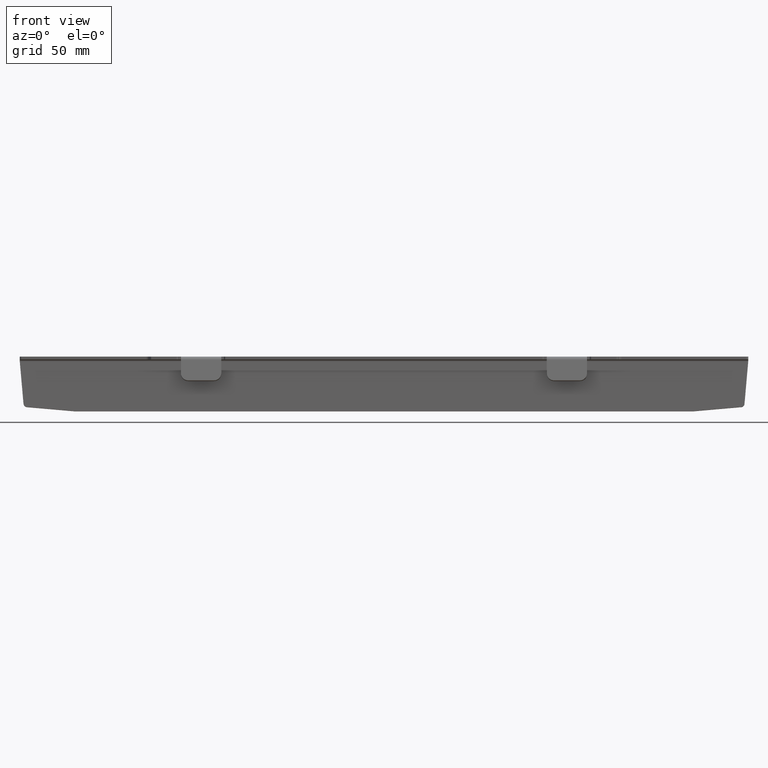
[diagram: clean part render]
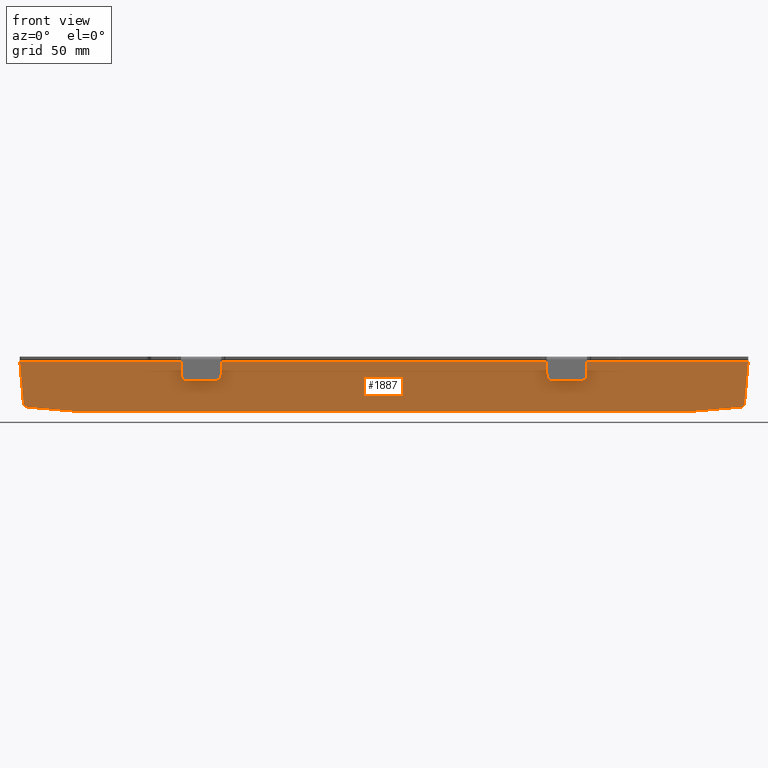
[diagram: same view with one face highlighted and labeled with its STEP entity id]
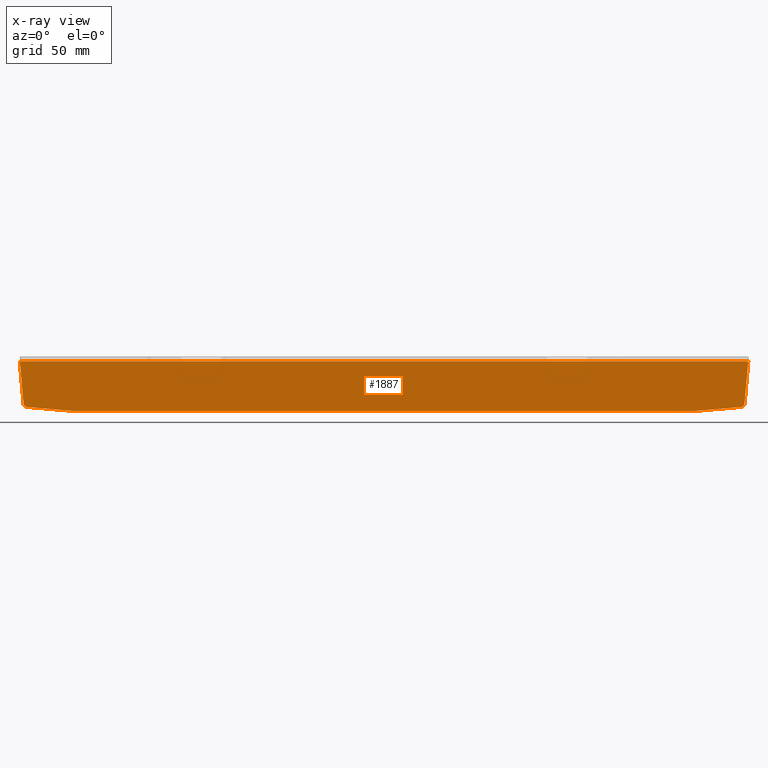
[diagram: x-ray of the same camera — body ghosted, the highlighted face saturated]
A machine part, front view. The second image highlights one B-rep face of the part: STEP entity #1887.
The next image is the same camera in x-ray: the body ghosted, the highlighted face saturated — about 0% of this face is hidden behind the body in this view.
In plain terms, the highlighted planar face has unit normal (0, -0.9962, 0.0872).
Its self-contained STEP definition (entity closure, byte-faithful):
#5 = VECTOR ( 'NONE', #786, 1000.000000000000000 ) ;
#64 = CIRCLE ( 'NONE', #206, 2.000000000000001300 ) ;
#78 = DIRECTION ( 'NONE',  ( -0.9961946980917455500, -0.007596123493895701900, -0.08682408883346544300 ) ) ;
#92 = DIRECTION ( 'NONE',  ( 0.0000000000000000000, -0.9961946980917458800, 0.08715574274765486300 ) ) ;
#95 = VERTEX_POINT ( 'NONE', #1687 ) ;
#101 = CARTESIAN_POINT ( 'NONE',  ( -3.792481612635670200, 8.927551874112502600, -44.19942897262853900 ) ) ;
#118 = LINE ( 'NONE', #101, #1873 ) ;
#148 = AXIS2_PLACEMENT_3D ( 'NONE', #1950, #661, #850 ) ;
#150 = VECTOR ( 'NONE', #2233, 1000.000000000000000 ) ;
#158 = FACE_OUTER_BOUND ( 'NONE', #607, .T. ) ;
#185 = CIRCLE ( 'NONE', #2354, 2.000000000000001300 ) ;
#200 = CARTESIAN_POINT ( 'NONE',  ( -199.0999999999999900, 12.56815404527022800, -2.587155742747654100 ) ) ;
#206 = AXIS2_PLACEMENT_3D ( 'NONE', #1548, #2296, #417 ) ;
#247 = VECTOR ( 'NONE', #2066, 1000.000000000000200 ) ;
#268 = VERTEX_POINT ( 'NONE', #757 ) ;
#331 = DIRECTION ( 'NONE',  ( 0.0000000000000000000, -0.9961946980917457700, 0.08715574274765484900 ) ) ;
#335 = VERTEX_POINT ( 'NONE', #2063 ) ;
#406 = VERTEX_POINT ( 'NONE', #2294 ) ;
#417 = DIRECTION ( 'NONE',  ( 0.0000000000000000000, -0.08715574274765521000, -0.9961946980917457700 ) ) ;
#439 = VERTEX_POINT ( 'NONE', #977 ) ;
#466 = ORIENTED_EDGE ( 'NONE', *, *, #2319, .T. ) ;
#539 = ORIENTED_EDGE ( 'NONE', *, *, #1154, .F. ) ;
#574 = EDGE_CURVE ( 'NONE', #268, #1419, #185, .T. ) ;
#594 = AXIS2_PLACEMENT_3D ( 'NONE', #664, #92, #1761 ) ;
#607 = EDGE_LOOP ( 'NONE', ( #1549, #1827, #2376, #1309, #1567, #2118, #539, #466, #841, #734 ) ) ;
#628 = CIRCLE ( 'NONE', #1353, 2.000000000000001300 ) ;
#661 = DIRECTION ( 'NONE',  ( 0.0000000000000000000, -0.9961946980917457700, 0.08715574274765484900 ) ) ;
#664 = CARTESIAN_POINT ( 'NONE',  ( 0.0000000000000000000, 12.70560194923043800, -1.016119011577477400 ) ) ;
#698 = CARTESIAN_POINT ( 'NONE',  ( -169.0126781141831900, 10.36235623970966200, -27.79954002962209000 ) ) ;
#707 = DIRECTION ( 'NONE',  ( 0.0000000000000000000, -0.08715574274765521000, -0.9961946980917457700 ) ) ;
#733 = LINE ( 'NONE', #744, #247 ) ;
#734 = ORIENTED_EDGE ( 'NONE', *, *, #2209, .F. ) ;
#744 = CARTESIAN_POINT ( 'NONE',  ( 197.7245366855542800, 11.19792478399977400, -18.24894786584358300 ) ) ;
#757 = CARTESIAN_POINT ( 'NONE',  ( -169.1869895996785500, 10.18870806204273900, -29.78434778263429200 ) ) ;
#786 = DIRECTION ( 'NONE',  ( 1.000000000000000000, 0.0000000000000000000, 0.0000000000000000000 ) ) ;
#841 = ORIENTED_EDGE ( 'NONE', *, *, #1311, .F. ) ;
#850 = DIRECTION ( 'NONE',  ( 0.0000000000000000000, -0.08715574274765521000, -0.9961946980917457700 ) ) ;
#874 = VERTEX_POINT ( 'NONE', #2244 ) ;
#875 = EDGE_CURVE ( 'NONE', #1347, #1419, #1737, .T. ) ;
#926 = CARTESIAN_POINT ( 'NONE',  ( 169.0126781141830700, 10.18804475421435100, -29.79192942580558400 ) ) ;
#977 = CARTESIAN_POINT ( 'NONE',  ( -197.0700343219225200, 10.54591299946135200, -25.70147666513480500 ) ) ;
#1019 = CARTESIAN_POINT ( 'NONE',  ( 197.0700343219225500, 10.54591299946135400, -25.70147666513478800 ) ) ;
#1061 = CIRCLE ( 'NONE', #148, 2.000000000000001300 ) ;
#1070 = DIRECTION ( 'NONE',  ( 0.0000000000000000000, -0.9961946980917457700, 0.08715574274765484900 ) ) ;
#1119 = LINE ( 'NONE', #200, #5 ) ;
#1147 = VERTEX_POINT ( 'NONE', #1019 ) ;
#1149 = VECTOR ( 'NONE', #1751, 1000.000000000000100 ) ;
#1154 = EDGE_CURVE ( 'NONE', #95, #335, #1434, .T. ) ;
#1190 = CARTESIAN_POINT ( 'NONE',  ( -197.7245366855542600, 11.19792478399977400, -18.24894786584358300 ) ) ;
#1201 = EDGE_CURVE ( 'NONE', #1894, #268, #118, .T. ) ;
#1309 = ORIENTED_EDGE ( 'NONE', *, *, #574, .T. ) ;
#1311 = EDGE_CURVE ( 'NONE', #406, #1147, #733, .T. ) ;
#1347 = VERTEX_POINT ( 'NONE', #926 ) ;
#1353 = AXIS2_PLACEMENT_3D ( 'NONE', #2323, #331, #1796 ) ;
#1389 = CARTESIAN_POINT ( 'NONE',  ( 3.792481612635670200, 8.927551874112506200, -44.19942897262853200 ) ) ;
#1418 = CARTESIAN_POINT ( 'NONE',  ( -195.2519564112343700, 10.38745706878221900, -27.51263624048007700 ) ) ;
#1419 = VERTEX_POINT ( 'NONE', #1685 ) ;
#1434 = LINE ( 'NONE', #1389, #2228 ) ;
#1548 = CARTESIAN_POINT ( 'NONE',  ( -195.0776449257390400, 10.56110524644914200, -25.52782848746787500 ) ) ;
#1549 = ORIENTED_EDGE ( 'NONE', *, *, #1660, .T. ) ;
#1567 = ORIENTED_EDGE ( 'NONE', *, *, #875, .F. ) ;
#1587 = DIRECTION ( 'NONE',  ( 0.9961946980917455500, -0.007596123493895701000, -0.08682408883346542900 ) ) ;
#1660 = EDGE_CURVE ( 'NONE', #874, #439, #2195, .T. ) ;
#1685 = CARTESIAN_POINT ( 'NONE',  ( -169.0126781141831900, 10.18804475421435100, -29.79192942580558400 ) ) ;
#1687 = CARTESIAN_POINT ( 'NONE',  ( 195.2519564112344000, 10.38745706878222200, -27.51263624048006700 ) ) ;
#1703 = EDGE_CURVE ( 'NONE', #439, #1894, #64, .T. ) ;
#1737 = LINE ( 'NONE', #2037, #150 ) ;
#1751 = DIRECTION ( 'NONE',  ( 0.08715574274765833200, -0.08682408883346184900, -0.9924038765061041800 ) ) ;
#1761 = DIRECTION ( 'NONE',  ( 0.0000000000000000000, -0.08715574274765486300, -0.9961946980917458800 ) ) ;
#1781 = PLANE ( 'NONE',  #594 ) ;
#1796 = DIRECTION ( 'NONE',  ( 0.0000000000000000000, -0.08715574274765521000, -0.9961946980917457700 ) ) ;
#1827 = ORIENTED_EDGE ( 'NONE', *, *, #1703, .T. ) ;
#1845 = EDGE_CURVE ( 'NONE', #1347, #335, #1061, .T. ) ;
#1873 = VECTOR ( 'NONE', #1587, 1000.000000000000100 ) ;
#1887 = ADVANCED_FACE ( 'NONE', ( #158 ), #1781, .T. ) ;
#1894 = VERTEX_POINT ( 'NONE', #1418 ) ;
#1950 = CARTESIAN_POINT ( 'NONE',  ( 169.0126781141830700, 10.36235623970966200, -27.79954002962209000 ) ) ;
#2037 = CARTESIAN_POINT ( 'NONE',  ( -199.0999999999999900, 10.18804475421435100, -29.79192942580558400 ) ) ;
#2063 = CARTESIAN_POINT ( 'NONE',  ( 169.1869895996784400, 10.18870806204274100, -29.78434778263429200 ) ) ;
#2066 = DIRECTION ( 'NONE',  ( -0.08715574274765831900, -0.08682408883346184900, -0.9924038765061041800 ) ) ;
#2118 = ORIENTED_EDGE ( 'NONE', *, *, #1845, .T. ) ;
#2195 = LINE ( 'NONE', #1190, #1149 ) ;
#2209 = EDGE_CURVE ( 'NONE', #874, #406, #1119, .T. ) ;
#2228 = VECTOR ( 'NONE', #78, 1000.000000000000000 ) ;
#2233 = DIRECTION ( 'NONE',  ( -1.000000000000000000, -0.0000000000000000000, -0.0000000000000000000 ) ) ;
#2244 = CARTESIAN_POINT ( 'NONE',  ( -199.0999999999999900, 12.56815404527022800, -2.587155742747654100 ) ) ;
#2294 = CARTESIAN_POINT ( 'NONE',  ( 199.1000000000001100, 12.56815404527023000, -2.587155742747648800 ) ) ;
#2296 = DIRECTION ( 'NONE',  ( 0.0000000000000000000, -0.9961946980917457700, 0.08715574274765484900 ) ) ;
#2319 = EDGE_CURVE ( 'NONE', #95, #1147, #628, .T. ) ;
#2323 = CARTESIAN_POINT ( 'NONE',  ( 195.0776449257390900, 10.56110524644914300, -25.52782848746786100 ) ) ;
#2354 = AXIS2_PLACEMENT_3D ( 'NONE', #698, #1070, #707 ) ;
#2376 = ORIENTED_EDGE ( 'NONE', *, *, #1201, .T. ) ;